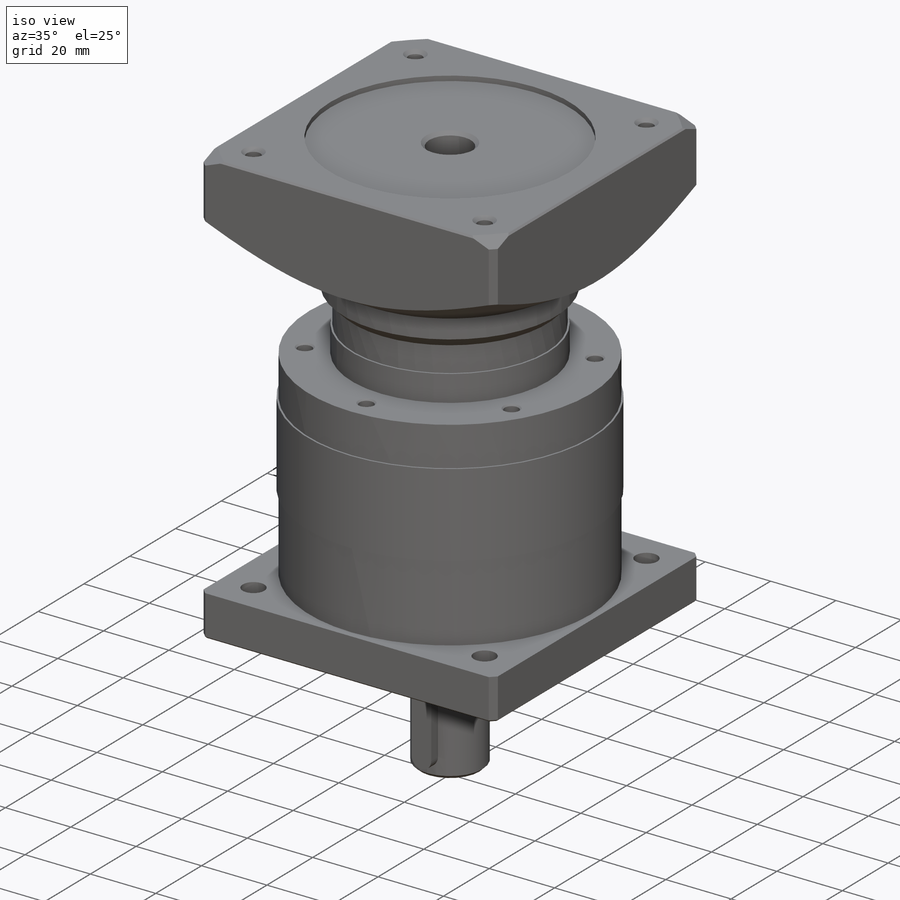
[diagram: iso view]
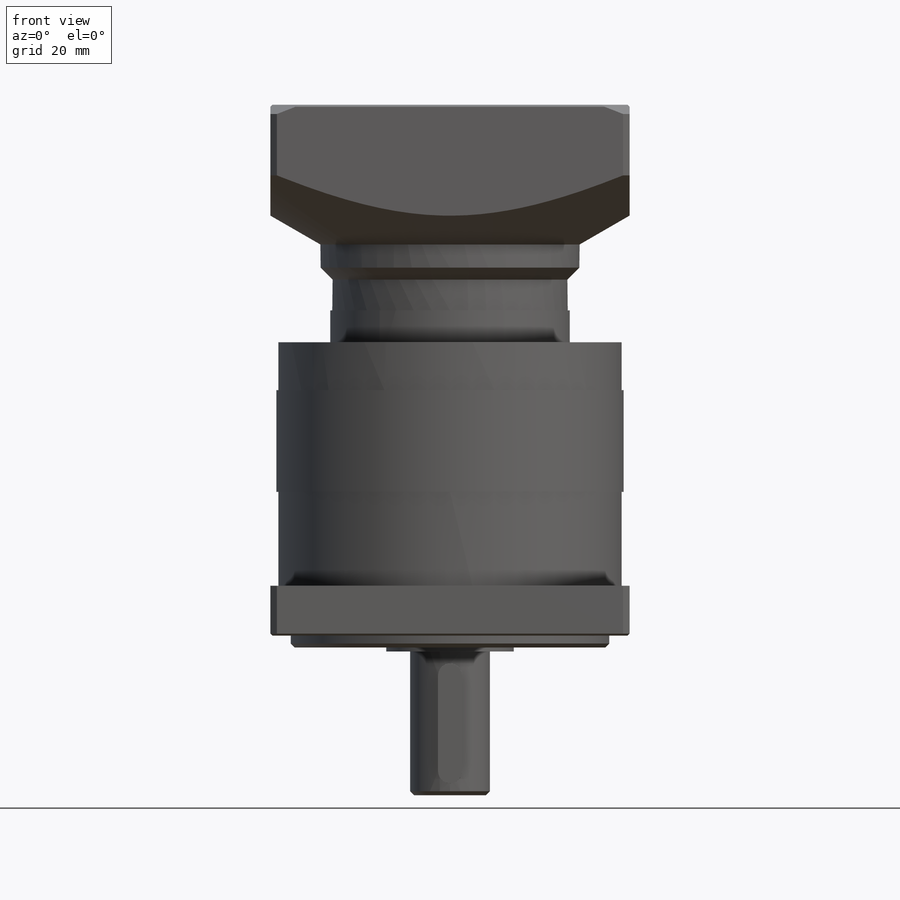
[diagram: front view]
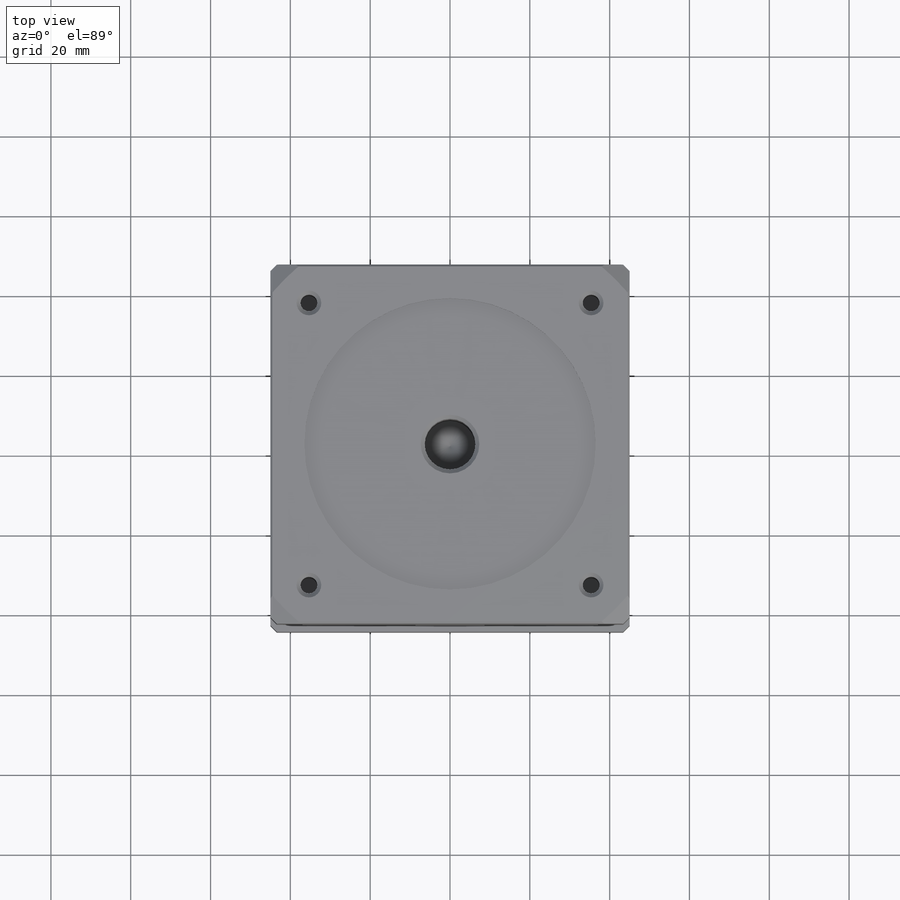
[diagram: top view]
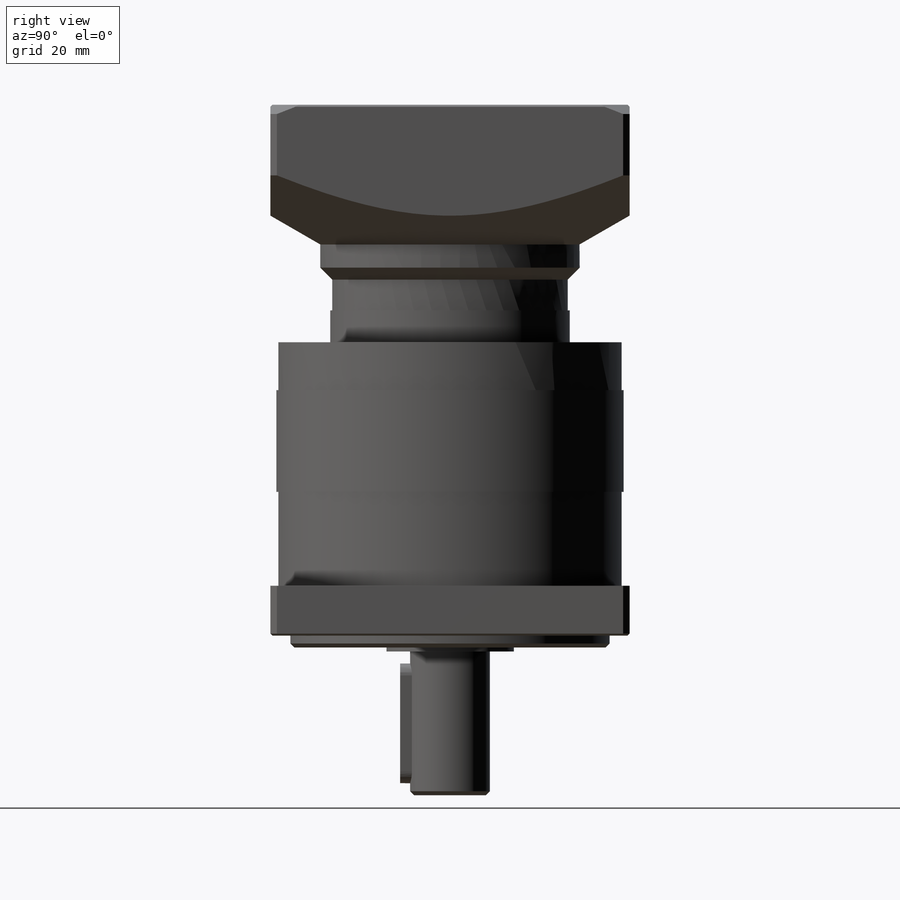
[diagram: right view]
SOLIDWORKS PART (.sldprt)
format: sldprt  version: not decoded by parser v0  size: 791,552 bytes
history: native  units: mm
features: sketch x14, thread x7, plane x5, chamfer x5, cut_extrude x4, hole x2, material x1, revolve x1, extrude x1, pattern_circular x1, cut_revolve x1 (+13 scaffold rows collapsed)
feature tree (55):
  scaffold x13  (default folders/planes/origin — collapsed)
  material  "Материал <не указан>"
  plane  "Спереди"
  plane  "Сверху"
  plane  "Справа"
  sketch  "Эскиз1"  dims[c1.D1=50.0mm c1.D2=71.0mm c2.D1=20.0mm c2.D3=52.0mm c2.D4=3.0mm c2.D5=80.0mm c2.D6=125.0mm c2.D9=1.0mm c2.D7=36.0mm c2.D8=12.0mm c2.D10=20.0mm c2.D11=5.0mm c2.D14=0.5mm c3.D8=0.5mm c3.D16=1.0mm c3.D2=168.0mm c3.D12=1.0mm c3.D13=32.0mm c3.D3=36.0mm c4.D2=213.0mm c4.D17=4.2mm c4.D18=16.0mm c4.D19=3.35mm c5.D19=60.0deg c5.D22=1.0mm c5.D29=1.0mm c5.D20=86.0mm c5.D8=12.0mm c5.D21=115.0mm c6.D8=125.0mm c6.D11=~3.281081mm c6.D10=35.0mm c7.D11=~11.268716mm c8.D11=60.0deg c8.D15=~26.164089mm c8.D21=65.0mm c8.D23=~5.603603mm c9.D23=~64.235009deg c10.D23=~11.609708mm c11.D23=60.0deg c11.D24=~81.982882mm c12.D23=~11.164195mm c13.D23=60.0deg c13.D24=30.0mm c13.D25=12.7mm c13.D26=8.8mm c13.D29=1.0mm c13.D35=1.0mm c13.D15=4.0mm c13.D27=1.5mm c13.D28=73.0mm c13.D32=1.0mm c13.D30=47.24mm c14.D30=30.0deg c14.D31=117.0mm c14.D33=40.0mm c14.D34=173.0mm c14.D10=35.0mm c14.D11=8.8mm c14.D15=0.5mm c14.D26=21.5mm c14.D29=18.0mm c14.D35=12.0mm c14.D36=7.7mm c14.D37=15.7mm c14.D38=0.5mm c14.D39=59.0mm c14.D40=3.0mm c14.D41=8.0mm c15.D15=0.5mm c15.D26=25.5mm]
  revolve  "Повернуть1"  Angle=360deg
  sketch  "Эскиз2"  dims[c1.D1=90.0mm c2.D1=~50.580547deg]
  cut_extrude  "Вырез-Вытянуть1"  [1 undecoded]
  sketch  "Эскиз3"  dims[c1.D1=6.6mm c1.D2=44.45mm c1.D3=44.45mm c2.D2=54.0mm c3.D2=45.0deg c3.D3=50.0mm]
  cut_extrude  "Вырез-Вытянуть2"  Depth=34.5mm
  chamfer  "Фаска1"  Distance=0.3mm Angle=45deg
  chamfer  "Фаска2"  Distance=0.5mm Angle=45deg
  chamfer  "Фаска3"  Distance=0.5mm Angle=45deg
  sketch  "Эскиз5"  dims[c1.D1=6.0mm c1.D2=6.0mm c1.D3=3.0mm c2.D1=19.0mm c2.D3=8.0mm c3.D1=3.0mm c3.D3=30.0mm]
  sketch  "Эскиз8"  dims[D1=86.0mm]
  cut_extrude  "Вырез-Вытянуть6"  Depth=23.5mm
  extrude  "Вытянуть1"  [1 undecoded]
  sketch  "Эскиз7"  dims[c1.D3=20.0mm c1.D1=44.45mm c1.D2=44.45mm c2.D1=44.45mm c3.D1=45.0deg c3.D2=53.0mm]
  plane  "Плоскость1"
  sketch  "Эскиз10"  dims[c1.D3=4.2mm c1.D1=49.2125mm c1.D2=49.2125mm c2.D1=49.2125mm c3.D1=45.0deg c3.D2=50.0mm]
  cut_extrude  "Вырез-Вытянуть8"  Depth=20mm
  chamfer  "Фаска4"  Distance=1mm Angle=45deg
  pattern_circular  "Круговой массив1"  Count=4 Angle=360deg
  sketch  "Эскиз11"  dims[D1=6.0mm D2=3.0mm D3=4.0mm]
  chamfer  "Фаска5"  Distance=3mm Angle=45deg
  plane  "Плоскость2"
  sketch  "Эскиз12"  dims[c1.D1=~29.989416mm c2.D1=30.0deg c2.D2=0.5mm]
  cut_revolve  "Вырез-Повернуть1"  Angle=360deg
  sketch  "Эскиз13"  dims[c1.D1=60.0mm c1.D2=60.0mm c2.D1=13.0mm c2.D2=6.5mm]
  hole  "Отверстие обработанное метчиком M5x0.81"  [1 undecoded]
  sketch  "Трехмерный эскиз1"
  sketch  "Эскиз14"  dims[hole-wizard template sketch: 39 standard entries collapsed; hole parameters kept: c13.Диаметр сверла=4.2mm c13.Глубина сверла=14.0mm c13.Диаметр передней зенковки=5.05mm c13.D4=~33.297463mm c13.Угол передней зенковки=90.0deg c14.D5=~14.816244mm c14.Угол заточки сверла=118.0deg]
  thread  "Отверстие резьбы1"  Diameter=10mm  [1 undecoded]
  thread  "Отверстие резьбы2"  Diameter=10mm  [1 undecoded]
  thread  "Отверстие резьбы3"  Diameter=10mm  [1 undecoded]
  thread  "Отверстие резьбы4"  Diameter=10mm  [1 undecoded]
  thread  "Отверстие резьбы5"  Diameter=10mm  [1 undecoded]
  thread  "Отверстие резьбы6"  Diameter=10mm  [1 undecoded]
  hole  "Отверстие обработанное метчиком M6x1.01"  [1 undecoded]
  sketch  "Эскиз17"
  sketch  "Эскиз16"  dims[hole-wizard template sketch: 39 standard entries collapsed; hole parameters kept: c13.Диаметр сверла=5.0mm c13.Глубина сверла=21.0mm c13.Диаметр передней зенковки=8.0mm c13.D4=~33.297463mm c13.Угол передней зенковки=90.0deg c14.D5=~14.816244mm c14.Угол заточки сверла=118.0deg]
  thread  "Отверстие резьбы7"  Diameter=16mm  [1 undecoded]
decode coverage: 30 of 36 modeling features carry decoded parameters
note: ~ marks probable driven/reference dimensions
note: 11 parameter values undecoded
summary: no parameter record found for 4 features
note: suppression state not decoded; provenance and decode notes live in map.json
